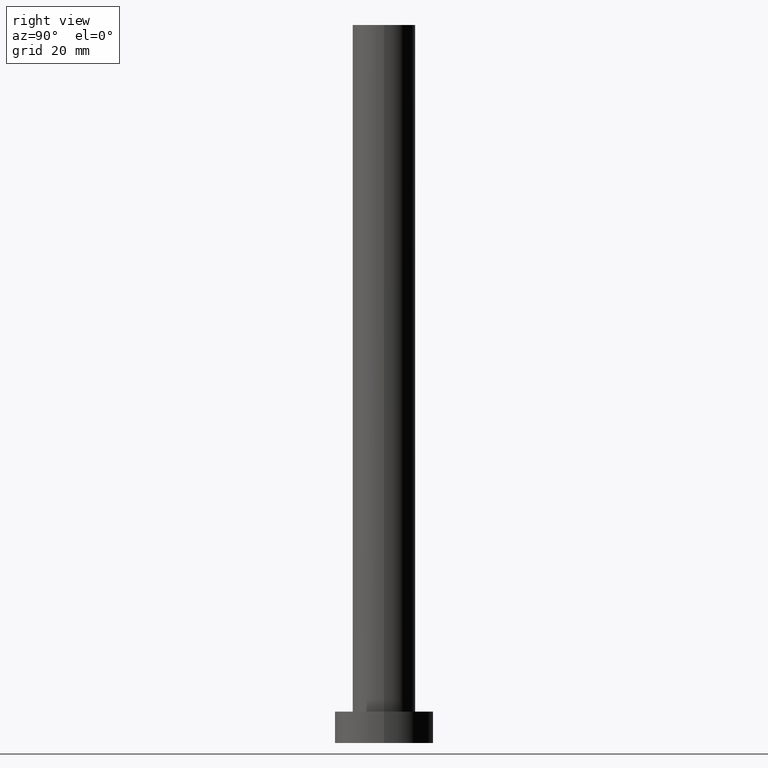
[diagram: clean part render]
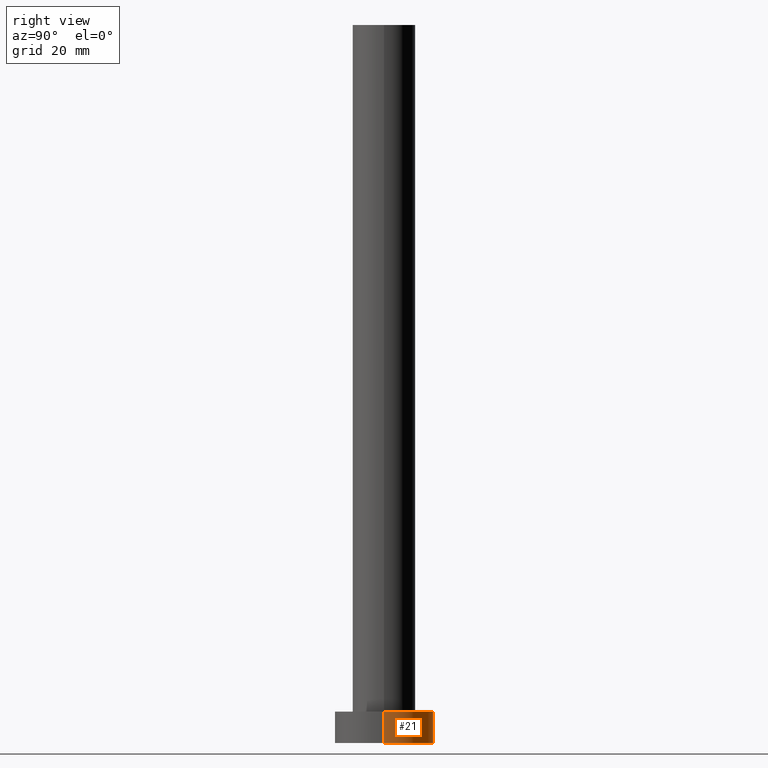
[diagram: same view with one face highlighted and labeled with its STEP entity id]
A machine part, right view. The second image highlights one B-rep face of the part: STEP entity #21.
In plain terms, the highlighted cylindrical surface (partial cylindrical patch) has radius 11 mm, axis along (-0, -0, -1).
Its self-contained STEP definition (entity closure, byte-faithful):
#6 = EDGE_LOOP ( 'NONE', ( #242, #127, #149, #130 ) ) ;
#8 = CARTESIAN_POINT ( 'NONE',  ( -11.00000000000000000, 0.000000000000000000, 7.000000000000000000 ) ) ;
#13 = CARTESIAN_POINT ( 'NONE',  ( 0.000000000000000000, 0.000000000000000000, 7.000000000000000000 ) ) ;
#16 = CARTESIAN_POINT ( 'NONE',  ( -11.00000000000000000, 0.000000000000000000, 0.000000000000000000 ) ) ;
#21 = ADVANCED_FACE ( 'NONE', ( #229 ), #33, .T. ) ;
#22 = CIRCLE ( 'NONE', #115, 11.00000000000000000 ) ;
#33 = CYLINDRICAL_SURFACE ( 'NONE', #165, 11.00000000000000000 ) ;
#34 = CARTESIAN_POINT ( 'NONE',  ( 11.00000000000000000, 1.347111479062088405E-15, 0.000000000000000000 ) ) ;
#38 = CIRCLE ( 'NONE', #204, 11.00000000000000000 ) ;
#46 = LINE ( 'NONE', #8, #147 ) ;
#54 = DIRECTION ( 'NONE',  ( -0.000000000000000000, -0.000000000000000000, -1.000000000000000000 ) ) ;
#58 = LINE ( 'NONE', #219, #177 ) ;
#72 = CARTESIAN_POINT ( 'NONE',  ( 0.000000000000000000, 0.000000000000000000, 7.000000000000000000 ) ) ;
#79 = DIRECTION ( 'NONE',  ( 0.000000000000000000, 0.000000000000000000, 1.000000000000000000 ) ) ;
#92 = DIRECTION ( 'NONE',  ( -0.000000000000000000, -0.000000000000000000, -1.000000000000000000 ) ) ;
#93 = EDGE_CURVE ( 'NONE', #164, #226, #22, .T. ) ;
#98 = EDGE_CURVE ( 'NONE', #226, #123, #46, .T. ) ;
#109 = DIRECTION ( 'NONE',  ( 0.000000000000000000, 0.000000000000000000, 1.000000000000000000 ) ) ;
#115 = AXIS2_PLACEMENT_3D ( 'NONE', #13, #109, #191 ) ;
#117 = CARTESIAN_POINT ( 'NONE',  ( -11.00000000000000000, 0.000000000000000000, 7.000000000000000000 ) ) ;
#123 = VERTEX_POINT ( 'NONE', #16 ) ;
#127 = ORIENTED_EDGE ( 'NONE', *, *, #201, .T. ) ;
#130 = ORIENTED_EDGE ( 'NONE', *, *, #98, .F. ) ;
#136 = EDGE_CURVE ( 'NONE', #143, #123, #38, .T. ) ;
#143 = VERTEX_POINT ( 'NONE', #34 ) ;
#147 = VECTOR ( 'NONE', #92, 1000.000000000000000 ) ;
#149 = ORIENTED_EDGE ( 'NONE', *, *, #136, .T. ) ;
#157 = DIRECTION ( 'NONE',  ( -0.000000000000000000, -0.000000000000000000, -1.000000000000000000 ) ) ;
#158 = CARTESIAN_POINT ( 'NONE',  ( 0.000000000000000000, 0.000000000000000000, 0.000000000000000000 ) ) ;
#164 = VERTEX_POINT ( 'NONE', #178 ) ;
#165 = AXIS2_PLACEMENT_3D ( 'NONE', #72, #54, #224 ) ;
#177 = VECTOR ( 'NONE', #157, 1000.000000000000000 ) ;
#178 = CARTESIAN_POINT ( 'NONE',  ( 11.00000000000000000, 1.347111479062088405E-15, 7.000000000000000000 ) ) ;
#191 = DIRECTION ( 'NONE',  ( 1.000000000000000000, 0.000000000000000000, 0.000000000000000000 ) ) ;
#198 = DIRECTION ( 'NONE',  ( 1.000000000000000000, 0.000000000000000000, 0.000000000000000000 ) ) ;
#201 = EDGE_CURVE ( 'NONE', #164, #143, #58, .T. ) ;
#204 = AXIS2_PLACEMENT_3D ( 'NONE', #158, #79, #198 ) ;
#219 = CARTESIAN_POINT ( 'NONE',  ( 11.00000000000000000, 1.347111479062088405E-15, 7.000000000000000000 ) ) ;
#224 = DIRECTION ( 'NONE',  ( -1.000000000000000000, 0.000000000000000000, 0.000000000000000000 ) ) ;
#226 = VERTEX_POINT ( 'NONE', #117 ) ;
#229 = FACE_OUTER_BOUND ( 'NONE', #6, .T. ) ;
#242 = ORIENTED_EDGE ( 'NONE', *, *, #93, .F. ) ;